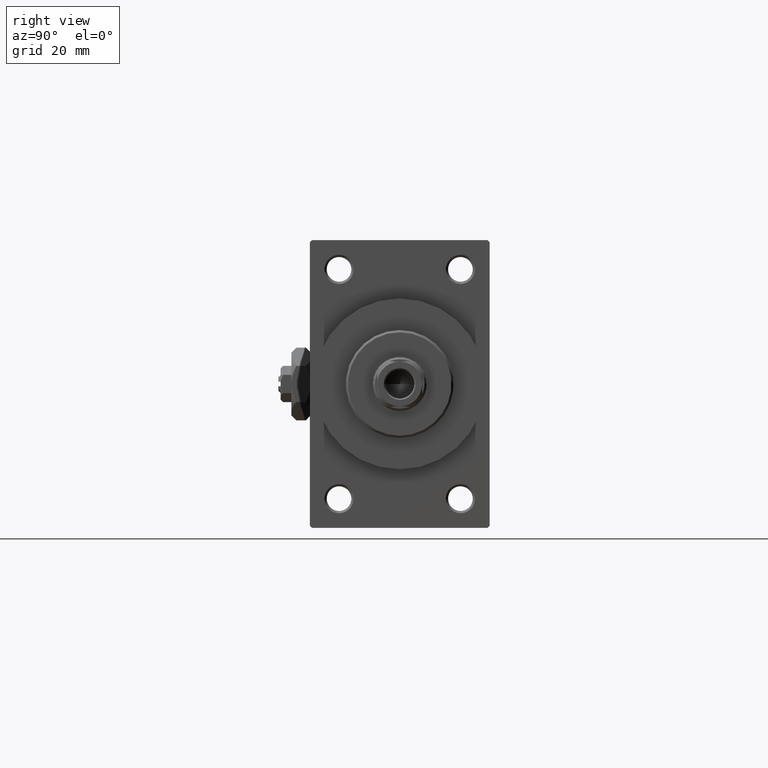
[diagram: clean part render]
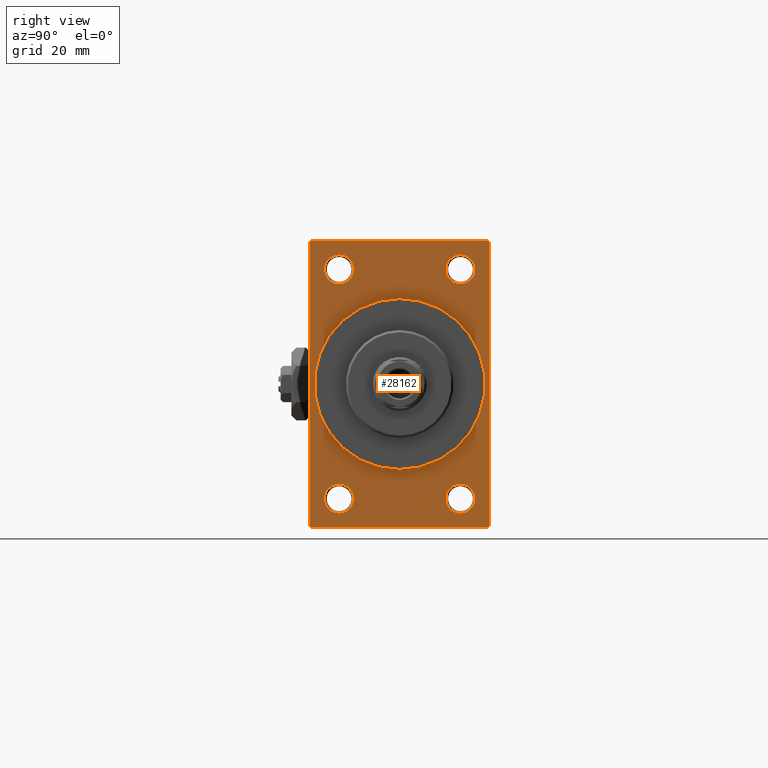
[diagram: same view with one face highlighted and labeled with its STEP entity id]
A machine part, right view. The second image highlights one B-rep face of the part: STEP entity #28162.
In plain terms, the highlighted planar face has unit normal (-1, 0, 0).
Its self-contained STEP definition (entity closure, byte-faithful):
#236 = CARTESIAN_POINT ( 'NONE',  ( 109.0000000000000142, 13.49999999999999822, 28.74999999999996803 ) ) ;
#279 = DIRECTION ( 'NONE',  ( 1.000000000000000000, 0.000000000000000000, 0.000000000000000000 ) ) ;
#973 = CARTESIAN_POINT ( 'NONE',  ( 109.0000000000000142, 13.49999999999999822, -25.50000000000000000 ) ) ;
#1711 = CIRCLE ( 'NONE', #3291, 3.250000000000002665 ) ;
#1802 = DIRECTION ( 'NONE',  ( 0.000000000000000000, 0.000000000000000000, 1.000000000000000000 ) ) ;
#2406 = DIRECTION ( 'NONE',  ( -1.000000000000000000, 0.000000000000000000, -0.000000000000000000 ) ) ;
#2817 = CARTESIAN_POINT ( 'NONE',  ( 109.0000000000000142, -20.00000000000000000, 31.99999999999999289 ) ) ;
#3028 = DIRECTION ( 'NONE',  ( 0.000000000000000000, -1.000000000000000000, -1.734723475976807094E-16 ) ) ;
#3240 = VECTOR ( 'NONE', #44912, 1000.000000000000000 ) ;
#3270 = AXIS2_PLACEMENT_3D ( 'NONE', #41309, #40588, #18368 ) ;
#3291 = AXIS2_PLACEMENT_3D ( 'NONE', #39564, #40046, #5526 ) ;
#3790 = CARTESIAN_POINT ( 'NONE',  ( 109.0000000000000142, -19.49999999999998579, -32.00000000000000000 ) ) ;
#3856 = VECTOR ( 'NONE', #24863, 1000.000000000000114 ) ;
#4408 = VERTEX_POINT ( 'NONE', #236 ) ;
#4960 = EDGE_CURVE ( 'NONE', #35918, #27352, #48398, .T. ) ;
#5156 = DIRECTION ( 'NONE',  ( 0.000000000000000000, 0.000000000000000000, 1.000000000000000000 ) ) ;
#5421 = ORIENTED_EDGE ( 'NONE', *, *, #44541, .T. ) ;
#5526 = DIRECTION ( 'NONE',  ( 0.000000000000000000, 0.000000000000000000, 1.000000000000000000 ) ) ;
#5537 = CARTESIAN_POINT ( 'NONE',  ( 109.0000000000000142, -13.50000000000000533, -25.49999999999999645 ) ) ;
#5695 = ORIENTED_EDGE ( 'NONE', *, *, #10778, .F. ) ;
#5710 = AXIS2_PLACEMENT_3D ( 'NONE', #12268, #34968, #23597 ) ;
#5861 = FACE_BOUND ( 'NONE', #32057, .T. ) ;
#6608 = VERTEX_POINT ( 'NONE', #31785 ) ;
#7113 = VERTEX_POINT ( 'NONE', #29633 ) ;
#7136 = DIRECTION ( 'NONE',  ( 0.000000000000000000, 0.000000000000000000, 1.000000000000000000 ) ) ;
#7316 = DIRECTION ( 'NONE',  ( -0.000000000000000000, -0.7071067811865474617, -0.7071067811865474617 ) ) ;
#7744 = DIRECTION ( 'NONE',  ( 0.000000000000000000, 0.000000000000000000, -1.000000000000000000 ) ) ;
#8883 = CARTESIAN_POINT ( 'NONE',  ( 109.0000000000000142, 13.49999999999999822, -22.24999999999999645 ) ) ;
#9258 = VERTEX_POINT ( 'NONE', #19235 ) ;
#9298 = ORIENTED_EDGE ( 'NONE', *, *, #21833, .F. ) ;
#9641 = CIRCLE ( 'NONE', #46683, 19.00000000000000000 ) ;
#9864 = EDGE_LOOP ( 'NONE', ( #25936, #47834, #9298, #5421, #24156, #30833, #39073, #40720 ) ) ;
#10003 = CARTESIAN_POINT ( 'NONE',  ( 109.0000000000000142, -13.50000000000000533, -22.24999999999999289 ) ) ;
#10344 = EDGE_LOOP ( 'NONE', ( #37198, #5695 ) ) ;
#10355 = CARTESIAN_POINT ( 'NONE',  ( 109.0000000000000142, -13.50000000000000178, 25.50000000000000355 ) ) ;
#10778 = EDGE_CURVE ( 'NONE', #29320, #43145, #9641, .T. ) ;
#11681 = CARTESIAN_POINT ( 'NONE',  ( 109.0000000000000142, 0.000000000000000000, 0.000000000000000000 ) ) ;
#11691 = CARTESIAN_POINT ( 'NONE',  ( 109.0000000000000142, 20.00000000000000000, -31.49999999999998579 ) ) ;
#11869 = DIRECTION ( 'NONE',  ( 0.000000000000000000, 0.000000000000000000, 1.000000000000000000 ) ) ;
#11937 = LINE ( 'NONE', #11691, #46602 ) ;
#12268 = CARTESIAN_POINT ( 'NONE',  ( 109.0000000000000142, -13.50000000000000178, 25.50000000000000355 ) ) ;
#13315 = EDGE_CURVE ( 'NONE', #9258, #35918, #47081, .T. ) ;
#14308 = VECTOR ( 'NONE', #7316, 1000.000000000000114 ) ;
#14355 = CARTESIAN_POINT ( 'NONE',  ( 109.0000000000000142, 19.49999999999998579, 32.00000000000000000 ) ) ;
#14650 = DIRECTION ( 'NONE',  ( 0.000000000000000000, -1.000000000000000000, 0.000000000000000000 ) ) ;
#15048 = EDGE_CURVE ( 'NONE', #16872, #48704, #25491, .T. ) ;
#15234 = EDGE_CURVE ( 'NONE', #19294, #4408, #48798, .T. ) ;
#16011 = VERTEX_POINT ( 'NONE', #47826 ) ;
#16872 = VERTEX_POINT ( 'NONE', #19269 ) ;
#18306 = CARTESIAN_POINT ( 'NONE',  ( 109.0000000000000142, 20.00000000000000000, 32.00000000000000000 ) ) ;
#18312 = CIRCLE ( 'NONE', #5710, 3.250000000000002665 ) ;
#18320 = EDGE_CURVE ( 'NONE', #38284, #46262, #23685, .T. ) ;
#18359 = CARTESIAN_POINT ( 'NONE',  ( 109.0000000000000142, 20.00000000000000000, -32.00000000000000000 ) ) ;
#18368 = DIRECTION ( 'NONE',  ( 0.000000000000000000, 0.000000000000000000, 1.000000000000000000 ) ) ;
#19001 = CARTESIAN_POINT ( 'NONE',  ( 109.0000000000000142, 0.000000000000000000, 0.000000000000000000 ) ) ;
#19235 = CARTESIAN_POINT ( 'NONE',  ( 109.0000000000000142, 20.00000000000000000, 31.49999999999998579 ) ) ;
#19269 = CARTESIAN_POINT ( 'NONE',  ( 109.0000000000000142, -20.00000000000000000, -31.49999999999997868 ) ) ;
#19294 = VERTEX_POINT ( 'NONE', #19593 ) ;
#19410 = EDGE_CURVE ( 'NONE', #46262, #38284, #1711, .T. ) ;
#19426 = CIRCLE ( 'NONE', #46999, 19.00000000000000000 ) ;
#19460 = CIRCLE ( 'NONE', #29698, 3.249999999999961364 ) ;
#19593 = CARTESIAN_POINT ( 'NONE',  ( 109.0000000000000142, 13.49999999999999822, 22.25000000000004263 ) ) ;
#20024 = CARTESIAN_POINT ( 'NONE',  ( 109.0000000000000142, -13.50000000000000178, 22.25000000000000000 ) ) ;
#20133 = EDGE_CURVE ( 'NONE', #37834, #6608, #32418, .T. ) ;
#20355 = CARTESIAN_POINT ( 'NONE',  ( 109.0000000000000142, 2.326828918379970970E-15, -19.00000000000000000 ) ) ;
#21065 = EDGE_CURVE ( 'NONE', #7113, #29825, #18312, .T. ) ;
#21124 = FACE_OUTER_BOUND ( 'NONE', #9864, .T. ) ;
#21198 = DIRECTION ( 'NONE',  ( -1.000000000000000000, -0.000000000000000000, -0.000000000000000000 ) ) ;
#21833 = EDGE_CURVE ( 'NONE', #48358, #48704, #47947, .T. ) ;
#22269 = DIRECTION ( 'NONE',  ( 0.000000000000000000, 0.7071067811865426878, -0.7071067811865524577 ) ) ;
#22399 = EDGE_CURVE ( 'NONE', #29825, #7113, #35673, .T. ) ;
#22620 = ORIENTED_EDGE ( 'NONE', *, *, #18320, .T. ) ;
#22781 = CARTESIAN_POINT ( 'NONE',  ( 109.0000000000000142, 0.000000000000000000, 19.00000000000000000 ) ) ;
#23597 = DIRECTION ( 'NONE',  ( 0.000000000000000000, 0.000000000000000000, 1.000000000000000000 ) ) ;
#23685 = CIRCLE ( 'NONE', #24493, 3.250000000000002665 ) ;
#24156 = ORIENTED_EDGE ( 'NONE', *, *, #38926, .F. ) ;
#24393 = ORIENTED_EDGE ( 'NONE', *, *, #22399, .T. ) ;
#24493 = AXIS2_PLACEMENT_3D ( 'NONE', #973, #38945, #5156 ) ;
#24831 = CARTESIAN_POINT ( 'NONE',  ( 109.0000000000000142, 0.000000000000000000, 0.000000000000000000 ) ) ;
#24863 = DIRECTION ( 'NONE',  ( 0.000000000000000000, -0.7071067811865474617, 0.7071067811865474617 ) ) ;
#25430 = CARTESIAN_POINT ( 'NONE',  ( 109.0000000000000142, 20.00000000000000000, 32.00000000000000000 ) ) ;
#25451 = CARTESIAN_POINT ( 'NONE',  ( 109.0000000000000142, 19.49999999999998579, -32.00000000000000000 ) ) ;
#25491 = LINE ( 'NONE', #3790, #28291 ) ;
#25599 = CARTESIAN_POINT ( 'NONE',  ( 109.0000000000000142, 19.49999999999998579, 32.00000000000000000 ) ) ;
#25936 = ORIENTED_EDGE ( 'NONE', *, *, #34187, .T. ) ;
#26030 = CARTESIAN_POINT ( 'NONE',  ( 109.0000000000000142, 20.00000000000000000, -31.49999999999998579 ) ) ;
#27003 = DIRECTION ( 'NONE',  ( -1.000000000000000000, -0.000000000000000000, -0.000000000000000000 ) ) ;
#27154 = DIRECTION ( 'NONE',  ( -1.000000000000000000, -0.000000000000000000, -0.000000000000000000 ) ) ;
#27201 = CARTESIAN_POINT ( 'NONE',  ( 109.0000000000000142, -19.49999999999998579, 31.99999999999999289 ) ) ;
#27352 = VERTEX_POINT ( 'NONE', #27201 ) ;
#27374 = ORIENTED_EDGE ( 'NONE', *, *, #21065, .T. ) ;
#27504 = VECTOR ( 'NONE', #3028, 1000.000000000000000 ) ;
#28015 = ORIENTED_EDGE ( 'NONE', *, *, #36066, .T. ) ;
#28162 = ADVANCED_FACE ( 'NONE', ( #39654, #33211, #28775, #5861, #48261, #21124 ), #47283, .F. ) ;
#28291 = VECTOR ( 'NONE', #22269, 1000.000000000000000 ) ;
#28562 = EDGE_LOOP ( 'NONE', ( #46869, #44714 ) ) ;
#28579 = AXIS2_PLACEMENT_3D ( 'NONE', #10355, #21198, #7136 ) ;
#28775 = FACE_BOUND ( 'NONE', #43402, .T. ) ;
#29320 = VERTEX_POINT ( 'NONE', #20355 ) ;
#29633 = CARTESIAN_POINT ( 'NONE',  ( 109.0000000000000142, -13.50000000000000178, 28.75000000000000355 ) ) ;
#29694 = DIRECTION ( 'NONE',  ( 1.000000000000000000, 0.000000000000000000, 0.000000000000000000 ) ) ;
#29698 = AXIS2_PLACEMENT_3D ( 'NONE', #38758, #27154, #11869 ) ;
#29825 = VERTEX_POINT ( 'NONE', #20024 ) ;
#29993 = CARTESIAN_POINT ( 'NONE',  ( 109.0000000000000142, -20.00000000000000000, 31.49999999999997868 ) ) ;
#30136 = VECTOR ( 'NONE', #14650, 1000.000000000000000 ) ;
#30354 = ORIENTED_EDGE ( 'NONE', *, *, #15234, .T. ) ;
#30833 = ORIENTED_EDGE ( 'NONE', *, *, #13315, .T. ) ;
#31785 = CARTESIAN_POINT ( 'NONE',  ( 109.0000000000000142, -13.50000000000000533, -28.74999999999999645 ) ) ;
#32057 = EDGE_LOOP ( 'NONE', ( #30354, #28015 ) ) ;
#32418 = CIRCLE ( 'NONE', #45850, 3.250000000000002665 ) ;
#32477 = DIRECTION ( 'NONE',  ( -0.000000000000000000, 0.000000000000000000, 1.000000000000000000 ) ) ;
#33211 = FACE_BOUND ( 'NONE', #28562, .T. ) ;
#34187 = EDGE_CURVE ( 'NONE', #16011, #16872, #36843, .T. ) ;
#34968 = DIRECTION ( 'NONE',  ( -1.000000000000000000, -0.000000000000000000, -0.000000000000000000 ) ) ;
#35613 = EDGE_CURVE ( 'NONE', #43145, #29320, #19426, .T. ) ;
#35673 = CIRCLE ( 'NONE', #28579, 3.250000000000002665 ) ;
#35918 = VERTEX_POINT ( 'NONE', #14355 ) ;
#36066 = EDGE_CURVE ( 'NONE', #4408, #19294, #19460, .T. ) ;
#36306 = DIRECTION ( 'NONE',  ( -1.000000000000000000, -0.000000000000000000, -0.000000000000000000 ) ) ;
#36843 = LINE ( 'NONE', #2817, #48546 ) ;
#36923 = LINE ( 'NONE', #29993, #14308 ) ;
#37035 = LINE ( 'NONE', #25430, #3240 ) ;
#37198 = ORIENTED_EDGE ( 'NONE', *, *, #35613, .F. ) ;
#37325 = ORIENTED_EDGE ( 'NONE', *, *, #19410, .T. ) ;
#37834 = VERTEX_POINT ( 'NONE', #10003 ) ;
#38284 = VERTEX_POINT ( 'NONE', #8883 ) ;
#38758 = CARTESIAN_POINT ( 'NONE',  ( 109.0000000000000142, 13.49999999999999822, 25.50000000000000355 ) ) ;
#38926 = EDGE_CURVE ( 'NONE', #9258, #46845, #37035, .T. ) ;
#38945 = DIRECTION ( 'NONE',  ( -1.000000000000000000, -0.000000000000000000, -0.000000000000000000 ) ) ;
#39073 = ORIENTED_EDGE ( 'NONE', *, *, #4960, .T. ) ;
#39520 = CARTESIAN_POINT ( 'NONE',  ( 109.0000000000000142, 13.49999999999999822, 25.50000000000000355 ) ) ;
#39564 = CARTESIAN_POINT ( 'NONE',  ( 109.0000000000000142, 13.49999999999999822, -25.50000000000000000 ) ) ;
#39654 = FACE_BOUND ( 'NONE', #41778, .T. ) ;
#39687 = AXIS2_PLACEMENT_3D ( 'NONE', #24831, #2406, #32477 ) ;
#40046 = DIRECTION ( 'NONE',  ( -1.000000000000000000, -0.000000000000000000, -0.000000000000000000 ) ) ;
#40588 = DIRECTION ( 'NONE',  ( -1.000000000000000000, -0.000000000000000000, -0.000000000000000000 ) ) ;
#40720 = ORIENTED_EDGE ( 'NONE', *, *, #40911, .T. ) ;
#40911 = EDGE_CURVE ( 'NONE', #27352, #16011, #36923, .T. ) ;
#41020 = DIRECTION ( 'NONE',  ( 0.000000000000000000, 0.000000000000000000, -1.000000000000000000 ) ) ;
#41309 = CARTESIAN_POINT ( 'NONE',  ( 109.0000000000000142, -13.50000000000000533, -25.49999999999999645 ) ) ;
#41778 = EDGE_LOOP ( 'NONE', ( #24393, #27374 ) ) ;
#41820 = CARTESIAN_POINT ( 'NONE',  ( 109.0000000000000142, 13.49999999999999822, -28.75000000000000000 ) ) ;
#42291 = DIRECTION ( 'NONE',  ( -0.000000000000000000, 0.7071067811865474617, 0.7071067811865474617 ) ) ;
#42511 = AXIS2_PLACEMENT_3D ( 'NONE', #39520, #36306, #1802 ) ;
#43056 = EDGE_CURVE ( 'NONE', #6608, #37834, #48147, .T. ) ;
#43145 = VERTEX_POINT ( 'NONE', #22781 ) ;
#43402 = EDGE_LOOP ( 'NONE', ( #37325, #22620 ) ) ;
#44541 = EDGE_CURVE ( 'NONE', #48358, #46845, #11937, .T. ) ;
#44634 = CARTESIAN_POINT ( 'NONE',  ( 109.0000000000000142, -19.49999999999998579, -32.00000000000000000 ) ) ;
#44714 = ORIENTED_EDGE ( 'NONE', *, *, #20133, .T. ) ;
#44912 = DIRECTION ( 'NONE',  ( 0.000000000000000000, 0.000000000000000000, -1.000000000000000000 ) ) ;
#45406 = DIRECTION ( 'NONE',  ( 0.000000000000000000, 0.000000000000000000, -1.000000000000000000 ) ) ;
#45850 = AXIS2_PLACEMENT_3D ( 'NONE', #5537, #27003, #46008 ) ;
#46008 = DIRECTION ( 'NONE',  ( 0.000000000000000000, 0.000000000000000000, 1.000000000000000000 ) ) ;
#46262 = VERTEX_POINT ( 'NONE', #41820 ) ;
#46602 = VECTOR ( 'NONE', #42291, 1000.000000000000114 ) ;
#46683 = AXIS2_PLACEMENT_3D ( 'NONE', #19001, #279, #45406 ) ;
#46845 = VERTEX_POINT ( 'NONE', #26030 ) ;
#46869 = ORIENTED_EDGE ( 'NONE', *, *, #43056, .T. ) ;
#46999 = AXIS2_PLACEMENT_3D ( 'NONE', #11681, #29694, #7744 ) ;
#47081 = LINE ( 'NONE', #25599, #3856 ) ;
#47283 = PLANE ( 'NONE',  #39687 ) ;
#47826 = CARTESIAN_POINT ( 'NONE',  ( 109.0000000000000142, -20.00000000000000000, 31.49999999999997868 ) ) ;
#47834 = ORIENTED_EDGE ( 'NONE', *, *, #15048, .T. ) ;
#47947 = LINE ( 'NONE', #18359, #30136 ) ;
#48147 = CIRCLE ( 'NONE', #3270, 3.250000000000002665 ) ;
#48261 = FACE_BOUND ( 'NONE', #10344, .T. ) ;
#48358 = VERTEX_POINT ( 'NONE', #25451 ) ;
#48398 = LINE ( 'NONE', #18306, #27504 ) ;
#48546 = VECTOR ( 'NONE', #41020, 1000.000000000000000 ) ;
#48704 = VERTEX_POINT ( 'NONE', #44634 ) ;
#48798 = CIRCLE ( 'NONE', #42511, 3.249999999999961364 ) ;